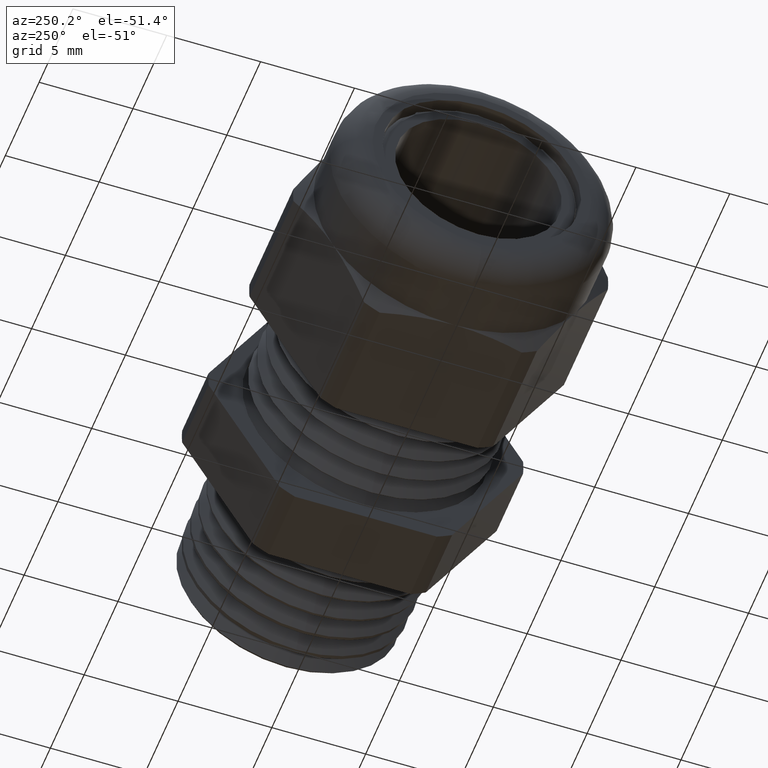
[diagram: clean part render]
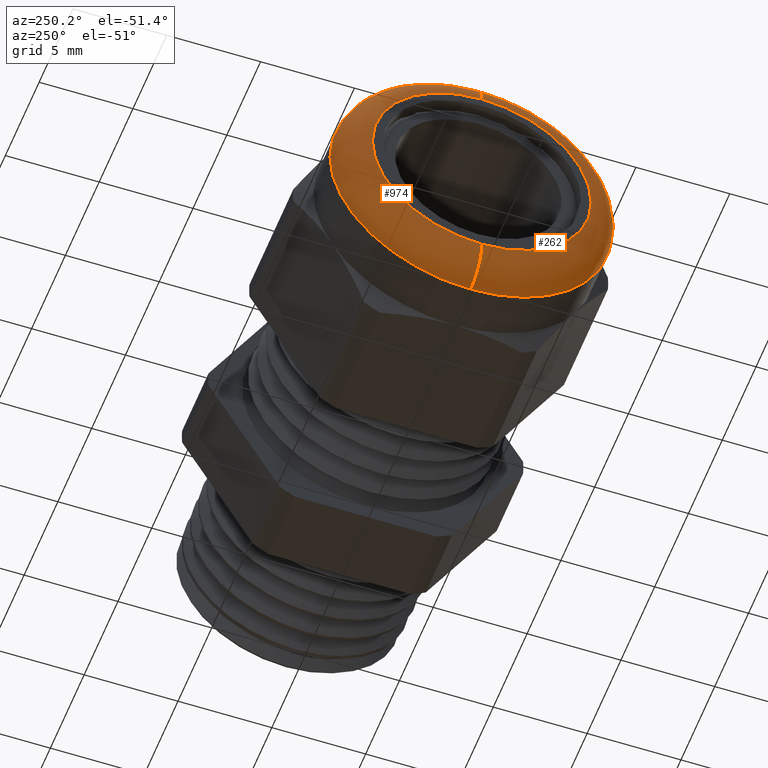
[diagram: same view with one multi-face feature highlighted, each face labeled with its STEP entity id]
A machine part, auxiliary view. The highlighted faces form ONE feature: a constant-radius fillet chain: 2 tangent blend faces with common blend radius 1.6612 mm. The faces share edges in the B-rep.
Their STEP definitions:
[1] entity #262 (Torus):
#1 = ORIENTED_EDGE ( 'NONE', *, *, #901, .F. ) ;
#6 = ORIENTED_EDGE ( 'NONE', *, *, #987, .T. ) ;
#262 = ADVANCED_FACE ( 'NONE', ( #1648 ), #1647, .T. ) ;
#263 = EDGE_LOOP ( 'NONE', ( #266, #1, #6, #1304 ) ) ;
#266 = ORIENTED_EDGE ( 'NONE', *, *, #981, .F. ) ;
#799 = EDGE_CURVE ( 'NONE', #930, #980, #2367, .T. ) ;
#901 = EDGE_CURVE ( 'NONE', #988, #973, #2439, .T. ) ;
#930 = VERTEX_POINT ( 'NONE', #2530 ) ;
#973 = VERTEX_POINT ( 'NONE', #2586 ) ;
#980 = VERTEX_POINT ( 'NONE', #2574 ) ;
#981 = EDGE_CURVE ( 'NONE', #973, #930, #2573, .T. ) ;
#987 = EDGE_CURVE ( 'NONE', #988, #980, #2620, .T. ) ;
#988 = VERTEX_POINT ( 'NONE', #2615 ) ;
#1304 = ORIENTED_EDGE ( 'NONE', *, *, #799, .F. ) ;
#1642 = DIRECTION ( 'NONE',  ( 0.0000000000000000000, 0.0000000000000000000, -1.000000000000000000 ) ) ;
#1643 = DIRECTION ( 'NONE',  ( 1.000000000000000000, 0.0000000000000000000, 0.0000000000000000000 ) ) ;
#1644 = CARTESIAN_POINT ( 'NONE',  ( -0.7646000000000000600, 0.0000000000000000000, 0.0000000000000000000 ) ) ;
#1645 = AXIS2_PLACEMENT_3D ( 'NONE', #1644, #1643, #1642 ) ;
#1647 = TOROIDAL_SURFACE ( 'NONE', #1645, 0.2295999999999995500, 0.06540000000000002800 ) ;
#1648 = FACE_OUTER_BOUND ( 'NONE', #263, .T. ) ;
#2363 = DIRECTION ( 'NONE',  ( 0.0000000000000000000, 0.0000000000000000000, -1.000000000000000000 ) ) ;
#2364 = DIRECTION ( 'NONE',  ( 1.000000000000000000, 0.0000000000000000000, 0.0000000000000000000 ) ) ;
#2365 = CARTESIAN_POINT ( 'NONE',  ( -0.7646000000000000600, 0.0000000000000000000, 0.0000000000000000000 ) ) ;
#2366 = AXIS2_PLACEMENT_3D ( 'NONE', #2365, #2364, #2363 ) ;
#2367 = CIRCLE ( 'NONE', #2366, 0.2949999999999996000 ) ;
#2436 = DIRECTION ( 'NONE',  ( -1.000000000000000000, 0.0000000000000000000, 0.0000000000000000000 ) ) ;
#2437 = CARTESIAN_POINT ( 'NONE',  ( -0.8300000000000001800, 0.0000000000000000000, 0.0000000000000000000 ) ) ;
#2438 = AXIS2_PLACEMENT_3D ( 'NONE', #2437, #2436, #2500 ) ;
#2439 = CIRCLE ( 'NONE', #2438, 0.2295999999999995500 ) ;
#2500 = DIRECTION ( 'NONE',  ( 0.0000000000000000000, 0.0000000000000000000, -1.000000000000000000 ) ) ;
#2530 = CARTESIAN_POINT ( 'NONE',  ( -0.7646000000000000600, 0.0000000000000000000, 0.2949999999999996000 ) ) ;
#2569 = DIRECTION ( 'NONE',  ( 0.0000000000000000000, 1.224646799147352700E-016, 1.000000000000000000 ) ) ;
#2570 = DIRECTION ( 'NONE',  ( 0.0000000000000000000, 1.000000000000000000, -1.224646799147353200E-016 ) ) ;
#2571 = CARTESIAN_POINT ( 'NONE',  ( -0.7646000000000000600, 2.811789050842317600E-017, 0.2295999999999995500 ) ) ;
#2572 = AXIS2_PLACEMENT_3D ( 'NONE', #2571, #2570, #2569 ) ;
#2573 = CIRCLE ( 'NONE', #2572, 0.06540000000000004100 ) ;
#2574 = CARTESIAN_POINT ( 'NONE',  ( -0.7646000000000000600, 3.612708057484686400E-017, -0.2949999999999996000 ) ) ;
#2586 = CARTESIAN_POINT ( 'NONE',  ( -0.8300000000000001800, 3.212248554163501700E-017, 0.2295999999999995500 ) ) ;
#2615 = CARTESIAN_POINT ( 'NONE',  ( -0.8300000000000001800, 0.0000000000000000000, -0.2295999999999995500 ) ) ;
#2616 = DIRECTION ( 'NONE',  ( 0.0000000000000000000, 0.0000000000000000000, -1.000000000000000000 ) ) ;
#2617 = DIRECTION ( 'NONE',  ( 0.0000000000000000000, -1.000000000000000000, 0.0000000000000000000 ) ) ;
#2618 = CARTESIAN_POINT ( 'NONE',  ( -0.7646000000000000600, 0.0000000000000000000, -0.2295999999999995500 ) ) ;
#2619 = AXIS2_PLACEMENT_3D ( 'NONE', #2618, #2617, #2616 ) ;
#2620 = CIRCLE ( 'NONE', #2619, 0.06540000000000004100 ) ;
[2] entity #974 (Torus):
#929 = ORIENTED_EDGE ( 'NONE', *, *, #981, .T. ) ;
#930 = VERTEX_POINT ( 'NONE', #2530 ) ;
#964 = EDGE_CURVE ( 'NONE', #973, #988, #2538, .T. ) ;
#967 = EDGE_LOOP ( 'NONE', ( #970, #929, #991, #989 ) ) ;
#970 = ORIENTED_EDGE ( 'NONE', *, *, #964, .F. ) ;
#973 = VERTEX_POINT ( 'NONE', #2586 ) ;
#974 = ADVANCED_FACE ( 'NONE', ( #2585 ), #2582, .T. ) ;
#980 = VERTEX_POINT ( 'NONE', #2574 ) ;
#981 = EDGE_CURVE ( 'NONE', #973, #930, #2573, .T. ) ;
#984 = EDGE_CURVE ( 'NONE', #980, #930, #2625, .T. ) ;
#987 = EDGE_CURVE ( 'NONE', #988, #980, #2620, .T. ) ;
#988 = VERTEX_POINT ( 'NONE', #2615 ) ;
#989 = ORIENTED_EDGE ( 'NONE', *, *, #987, .F. ) ;
#991 = ORIENTED_EDGE ( 'NONE', *, *, #984, .F. ) ;
#2530 = CARTESIAN_POINT ( 'NONE',  ( -0.7646000000000000600, 0.0000000000000000000, 0.2949999999999996000 ) ) ;
#2534 = DIRECTION ( 'NONE',  ( 0.0000000000000000000, 0.0000000000000000000, -1.000000000000000000 ) ) ;
#2535 = DIRECTION ( 'NONE',  ( -1.000000000000000000, 0.0000000000000000000, 0.0000000000000000000 ) ) ;
#2536 = CARTESIAN_POINT ( 'NONE',  ( -0.8300000000000001800, 0.0000000000000000000, 0.0000000000000000000 ) ) ;
#2537 = AXIS2_PLACEMENT_3D ( 'NONE', #2536, #2535, #2534 ) ;
#2538 = CIRCLE ( 'NONE', #2537, 0.2295999999999995500 ) ;
#2569 = DIRECTION ( 'NONE',  ( 0.0000000000000000000, 1.224646799147352700E-016, 1.000000000000000000 ) ) ;
#2570 = DIRECTION ( 'NONE',  ( 0.0000000000000000000, 1.000000000000000000, -1.224646799147353200E-016 ) ) ;
#2571 = CARTESIAN_POINT ( 'NONE',  ( -0.7646000000000000600, 2.811789050842317600E-017, 0.2295999999999995500 ) ) ;
#2572 = AXIS2_PLACEMENT_3D ( 'NONE', #2571, #2570, #2569 ) ;
#2573 = CIRCLE ( 'NONE', #2572, 0.06540000000000004100 ) ;
#2574 = CARTESIAN_POINT ( 'NONE',  ( -0.7646000000000000600, 3.612708057484686400E-017, -0.2949999999999996000 ) ) ;
#2579 = DIRECTION ( 'NONE',  ( 0.0000000000000000000, 0.0000000000000000000, -1.000000000000000000 ) ) ;
#2580 = DIRECTION ( 'NONE',  ( 1.000000000000000000, 0.0000000000000000000, 0.0000000000000000000 ) ) ;
#2581 = AXIS2_PLACEMENT_3D ( 'NONE', #2584, #2580, #2579 ) ;
#2582 = TOROIDAL_SURFACE ( 'NONE', #2581, 0.2295999999999995500, 0.06540000000000002800 ) ;
#2584 = CARTESIAN_POINT ( 'NONE',  ( -0.7646000000000000600, 0.0000000000000000000, 0.0000000000000000000 ) ) ;
#2585 = FACE_OUTER_BOUND ( 'NONE', #967, .T. ) ;
#2586 = CARTESIAN_POINT ( 'NONE',  ( -0.8300000000000001800, 3.212248554163501700E-017, 0.2295999999999995500 ) ) ;
#2615 = CARTESIAN_POINT ( 'NONE',  ( -0.8300000000000001800, 0.0000000000000000000, -0.2295999999999995500 ) ) ;
#2616 = DIRECTION ( 'NONE',  ( 0.0000000000000000000, 0.0000000000000000000, -1.000000000000000000 ) ) ;
#2617 = DIRECTION ( 'NONE',  ( 0.0000000000000000000, -1.000000000000000000, 0.0000000000000000000 ) ) ;
#2618 = CARTESIAN_POINT ( 'NONE',  ( -0.7646000000000000600, 0.0000000000000000000, -0.2295999999999995500 ) ) ;
#2619 = AXIS2_PLACEMENT_3D ( 'NONE', #2618, #2617, #2616 ) ;
#2620 = CIRCLE ( 'NONE', #2619, 0.06540000000000004100 ) ;
#2621 = DIRECTION ( 'NONE',  ( 0.0000000000000000000, 0.0000000000000000000, -1.000000000000000000 ) ) ;
#2622 = DIRECTION ( 'NONE',  ( 1.000000000000000000, 0.0000000000000000000, 0.0000000000000000000 ) ) ;
#2623 = CARTESIAN_POINT ( 'NONE',  ( -0.7646000000000000600, 0.0000000000000000000, 0.0000000000000000000 ) ) ;
#2624 = AXIS2_PLACEMENT_3D ( 'NONE', #2623, #2622, #2621 ) ;
#2625 = CIRCLE ( 'NONE', #2624, 0.2949999999999996000 ) ;